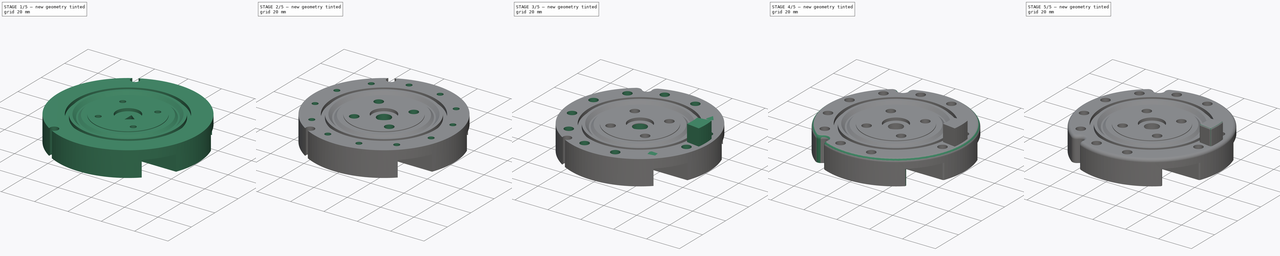
[diagram: build sequence overview — one tinted view per stage of 5, left to right]
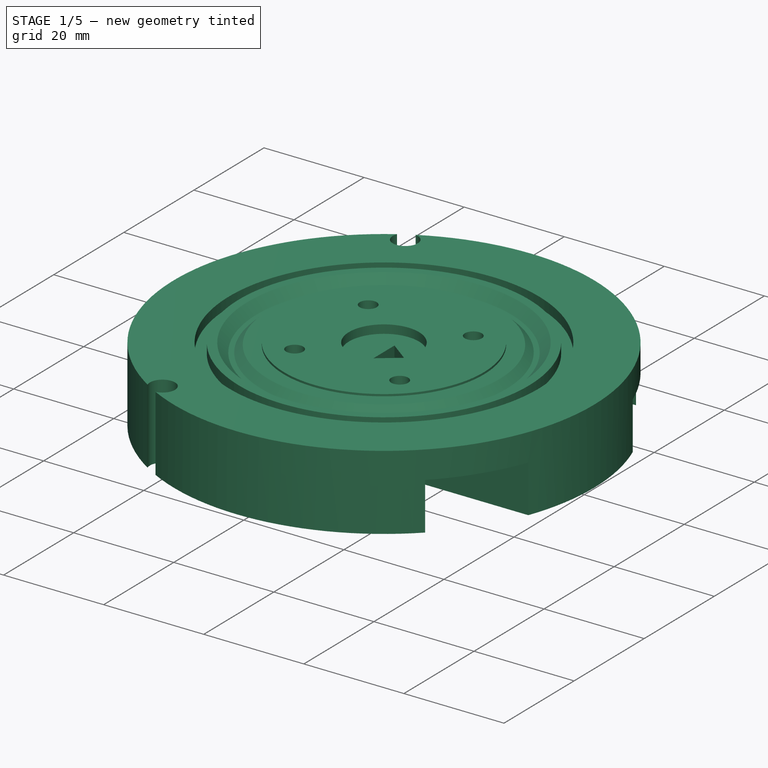
[diagram: stage 1 of 5 — iso view after this stage's code; geometry added in this stage tinted green]
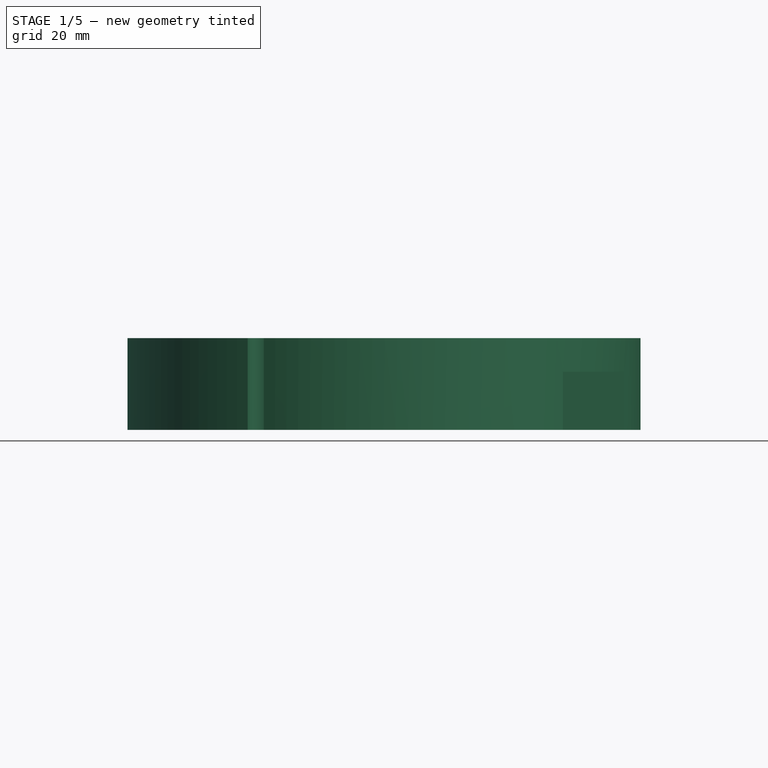
[diagram: stage 1 of 5 — front view after this stage's code; geometry added in this stage tinted green]
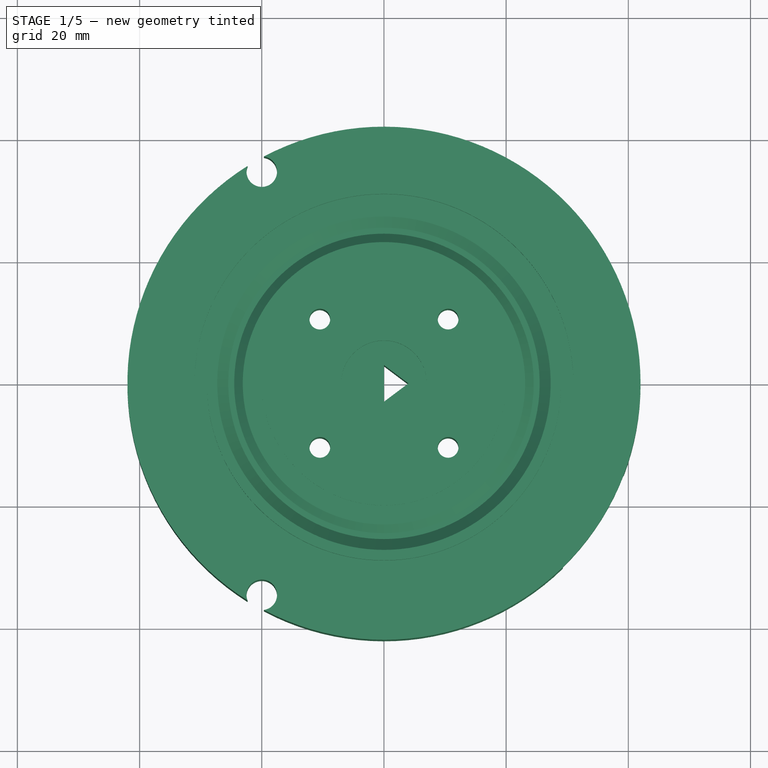
[diagram: stage 1 of 5 — top view after this stage's code; geometry added in this stage tinted green]
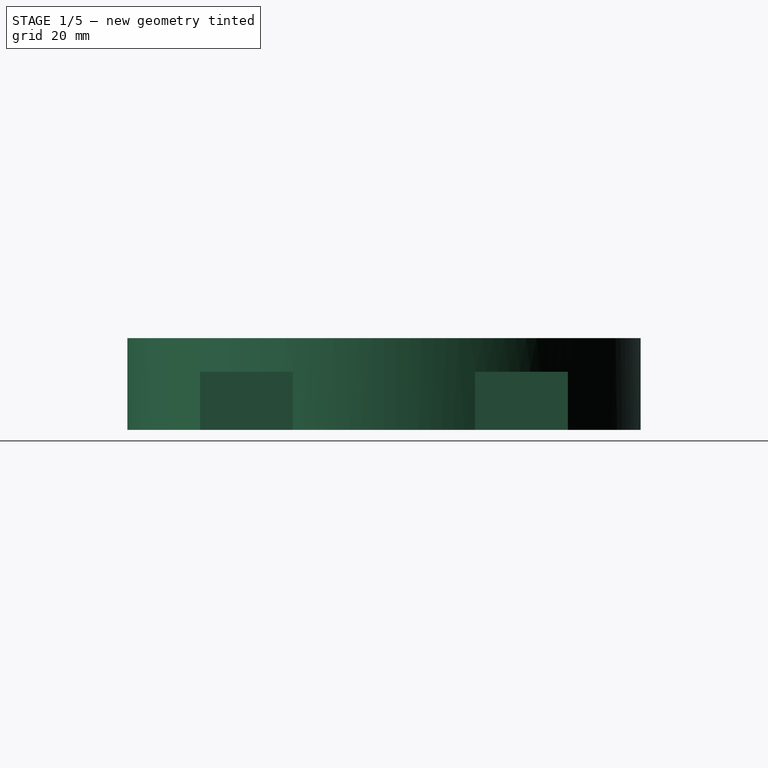
[diagram: stage 1 of 5 — right view after this stage's code; geometry added in this stage tinted green]
FCSTD DOCUMENT  (FreeCAD 0.16R6706 (Git))
Label: UpperKnee4-15mm
License: All rights reserved
LicenseURL: http://en.wikipedia.org/wiki/All_rights_reserved
objects: Sketcher::SketchObject×18, PartDesign::Fillet×16, PartDesign::Pocket×12, PartDesign::Pad×3, PartDesign::Groove×3, PartDesign::PolarPattern×2
note: 72 computed .brp shape members not serialized (recipe doc carries the construction recipe); baked Part::Feature solids carry a one-line shape summary decoded from their .brp

FEATURE [Sketcher::SketchObject] Sketch020  label="BaseShape"
  Placement = pos=(0,0,0) rot=(1,0,0;3.14159rad)
  sketch-geometry (7):
    g0: Circle [constr] CenterX=0 CenterY=0 CenterZ=0 NormalX=0 NormalY=0 NormalZ=1 Radius=25
    g1: Circle [constr] CenterX=0 CenterY=0 CenterZ=0 NormalX=0 NormalY=0 NormalZ=1 Radius=7
    g2: Circle [constr] CenterX=0 CenterY=0 CenterZ=0 NormalX=0 NormalY=0 NormalZ=1 Radius=45
    g3: Circle CenterX=0 CenterY=0 CenterZ=0 NormalX=0 NormalY=0 NormalZ=1 Radius=42
    g4: LineSegment StartX=0 StartY=-3 StartZ=0 EndX=0 EndY=3 EndZ=0
    g5: LineSegment StartX=0 StartY=3 StartZ=0 EndX=4 EndY=0 EndZ=0
    g6: LineSegment StartX=4 StartY=0 StartZ=0 EndX=0 EndY=-3 EndZ=0
  constraints (17):
    c: Coincident(g0,g-1)
    c: Coincident(g1,g-1)
    c: Radius(g1) = 7
    c: Radius(g0) = 25
    c: Coincident(g2,g-1)
    c: Radius(g2) = 45
    c: Coincident(g3,g-1)
    c: Radius(g3) = 42
    c: PointOnObject(g4,g-2)
    c: PointOnObject(g4,g-2)
    c: Coincident(g4,g5)
    c: Coincident(g5,g6)
    c: Coincident(g6,g4)
    c: PointOnObject(g5,g-1)
    c: Equal(g6,g5)
    c: DistanceX(g-1,g5) = 4
    c: DistanceY(g4,g4) = 6
FEATURE [PartDesign::Pad] Pad
  Length = 15
  Length2 = 100
  Placement = pos=(0,0,0) rot=(1,0,0;3.14159rad)
  Sketch = -> Sketch020
  Type = 0
FEATURE [Sketcher::SketchObject] Sketch002  label="Grove1"
  Placement = pos=(0,0,0) rot=(0.57735,-0.57735,0.57735;4.18879rad)
  Support = -> Pad [Face2]
  sketch-geometry (19):
    g0: Circle [constr] CenterX=25 CenterY=-0.4 CenterZ=0 NormalX=0 NormalY=0 NormalZ=1 Radius=1.9
    g1: LineSegment StartX=23.113 StartY=0.4 StartZ=0 EndX=24.513 EndY=1.8 EndZ=0
    g2: LineSegment StartX=24.513 StartY=1.8 StartZ=0 EndX=25.487 EndY=1.8 EndZ=0
    g3: LineSegment StartX=25.487 StartY=1.8 StartZ=0 EndX=27.287 EndY=0 EndZ=0
    g4: LineSegment StartX=27.287 StartY=0 StartZ=0 EndX=27.287 EndY=-5.6 EndZ=0
    g5: LineSegment [constr] StartX=25 StartY=1.8 StartZ=0 EndX=25 EndY=-9.6 EndZ=0
    g6: GeomPoint [constr] X=25 Y=1.5 Z=0
    g7: LineSegment StartX=23.113 StartY=0.4 StartZ=0 EndX=20 EndY=0.4 EndZ=0
    g8: LineSegment StartX=20 StartY=0.4 StartZ=0 EndX=20 EndY=-9.6 EndZ=0
    g9: LineSegment StartX=29 StartY=2 StartZ=0 EndX=31 EndY=2 EndZ=0
    g10: LineSegment StartX=31 StartY=2 StartZ=0 EndX=31 EndY=-9.6 EndZ=0
    g11: LineSegment StartX=29 StartY=-5.6 StartZ=0 EndX=29 EndY=2 EndZ=0
    g12: GeomPoint [constr] X=30 Y=2 Z=0
    g13: LineSegment StartX=27.287 StartY=-5.6 StartZ=0 EndX=29 EndY=-5.6 EndZ=0
    g14: LineSegment StartX=20 StartY=-9.6 StartZ=0 EndX=31 EndY=-9.6 EndZ=0
    g15: LineSegment [constr] StartX=25 StartY=-0.4 StartZ=0 EndX=27.3335 EndY=1.93345 EndZ=0
    g16: LineSegment [constr] StartX=25 StartY=-0.4 StartZ=0 EndX=22.6665 EndY=1.93345 EndZ=0
    g17: GeomPoint [constr] X=26.3435 Y=0.943503 Z=0
    g18: GeomPoint [constr] X=23.6565 Y=0.943503 Z=0
  constraints (57):
    c: DistanceY(g0,g-1) = 0.4
    c: DistanceX(g-1,g0) = 25
    c: Radius(g0) = 1.9
    c: Coincident(g1,g2)
    c: Coincident(g2,g3)
    c: PointOnObject(g3,g-1)
    c: Coincident(g3,g4)
    c: Vertical(g4)
    c: Vertical(g5)
    c: Horizontal(g2)
    c: PointOnObject(g5,g2)
    c: PointOnObject(g0,g5)
    c: Symmetric(g1,g2,g5)
    c: Tangent(g0,g1)
    c: Tangent(g3,g0)
    c: Angle(g1,g3) = 1.5708
    c: PointOnObject(g6,g0)
    c: PointOnObject(g6,g5)
    c: DistanceY(g6,g5) = 0.3
    c: DistanceY(g8,g1) = 10
    c: Horizontal(g7)
    c: Coincident(g8,g7)
    c: Vertical(g8)
    c: DistanceY(g-1,g7) = 0.4
    c: Coincident(g1,g7)
    c: DistanceX(g-1,g7) = 20
    c: DistanceX(g7,g0) = 5
    c: Coincident(g9,g10)
    c: Coincident(g11,g9)
    c: Horizontal(g9)
    c: Vertical(g10)
    c: Vertical(g11)
    c: DistanceY(g-1,g9) = 2
    c: DistanceX(g9,g9) = 2
    c: Symmetric(g9,g9,g12)
    c: DistanceX(g-1,g12) = 30
    c: Coincident(g13,g4)
    c: Coincident(g13,g11)
    c: Horizontal(g13)
    c: Coincident(g14,g8)
    c: Horizontal(g14)
    c: Coincident(g14,g10)
    c: PointOnObject(g5,g14)
    c: DistanceY(g10,g11) = 4
    c: Coincident(g15,g0)
    c: Coincident(g16,g0)
    c: Perpendicular(g1,g16)
    c: Perpendicular(g15,g3)
    c: PointOnObject(g17,g3)
    c: PointOnObject(g17,g15)
    c: Distance(g17,g15) = 1.4
    c: PointOnObject(g18,g1)
    c: PointOnObject(g18,g16)
    c: Distance(g18,g16) = 1.4
    c: DistanceY(g-1,g16) = 1.93345
    c: DistanceX(g-1,g16) = 22.6665
    c: DistanceX(g-1,g15) = 27.3335
FEATURE [PartDesign::Groove] Groove
  Angle = 360
  Axis = (0,0,-1)
  Base = (0,0,0)
  Placement = pos=(0,0,0) rot=(1,0,0;3.14159rad)
  ReferenceAxis = -> Sketch002 [V_Axis]
  Sketch = -> Sketch002
FEATURE [Sketcher::SketchObject] Sketch  label="RodRecess"
  Placement = pos=(0,0,-15) rot=(1,0,0;3.14159rad)
  Support = -> Groove [Face3]
  sketch-geometry (12):
    g0: LineSegment StartX=-20 StartY=30.1 StartZ=0 EndX=40 EndY=30.1 EndZ=0
    g1: LineSegment StartX=40 StartY=30.1 StartZ=0 EndX=40 EndY=14.9 EndZ=0
    g2: LineSegment StartX=40 StartY=14.9 StartZ=0 EndX=-20 EndY=14.9 EndZ=0
    g3: LineSegment StartX=-20 StartY=14.9 StartZ=0 EndX=-20 EndY=30.1 EndZ=0
    g4: LineSegment StartX=-20 StartY=-14.9 StartZ=0 EndX=40 EndY=-14.9 EndZ=0
    g5: LineSegment StartX=40 StartY=-14.9 StartZ=0 EndX=40 EndY=-30.1 EndZ=0
    g6: LineSegment StartX=40 StartY=-30.1 StartZ=0 EndX=-20 EndY=-30.1 EndZ=0
    g7: LineSegment StartX=-20 StartY=-30.1 StartZ=0 EndX=-20 EndY=-14.9 EndZ=0
    g8: LineSegment [constr] StartX=-20 StartY=14.9 StartZ=0 EndX=-20 EndY=-14.9 EndZ=0
    g9: LineSegment [constr] StartX=40 StartY=14.9 StartZ=0 EndX=40 EndY=-14.9 EndZ=0
    g10: GeomPoint [constr] X=-20 Y=22.5 Z=0
    g11: GeomPoint [constr] X=-20 Y=-22.5 Z=0
  constraints (30):
    c: Coincident(g0,g1)
    c: Coincident(g1,g2)
    c: Coincident(g2,g3)
    c: Coincident(g3,g0)
    c: Horizontal(g0)
    c: Horizontal(g2)
    c: Vertical(g1)
    c: Vertical(g3)
    c: Coincident(g4,g5)
    c: Coincident(g5,g6)
    c: Coincident(g6,g7)
    c: Coincident(g7,g4)
    c: Horizontal(g4)
    c: Horizontal(g6)
    c: Vertical(g5)
    c: Vertical(g7)
    c: Coincident(g8,g2)
    c: Coincident(g8,g4)
    c: Vertical(g8)
    c: Coincident(g9,g1)
    c: Coincident(g9,g4)
    c: Vertical(g9)
    c: DistanceY(g2,g0) = 15.2
    c: DistanceX(g0,g0) = 60
    c: Symmetric(g0,g5,g-1)
    c: Symmetric(g1,g4,g-1)
    c: DistanceX(g6,g-1) = 20
    c: Symmetric(g0,g2,g10)
    c: Symmetric(g4,g6,g11)
    c: DistanceY(g11,g10) = 45
FEATURE [PartDesign::Pocket] Pocket
  Length = 9.5
  Placement = pos=(0,0,0) rot=(1,0,0;3.14159rad)
  Sketch = -> Sketch
  Type = 0
FEATURE [Sketcher::SketchObject] Sketch022  label="OuterMountingHoles"
  Support = -> Pocket [Face2]
  sketch-geometry (16):
    g0: Circle [constr] CenterX=30.8221 CenterY=15.5 CenterZ=0 NormalX=0 NormalY=0 NormalZ=1 Radius=1.7
    g1: Circle [constr] CenterX=0 CenterY=0 CenterZ=0 NormalX=0 NormalY=0 NormalZ=1 Radius=38.6
    g2: Circle [constr] CenterX=0 CenterY=0 CenterZ=0 NormalX=0 NormalY=0 NormalZ=1 Radius=30
    g3: Circle [constr] CenterX=0 CenterY=0 CenterZ=0 NormalX=0 NormalY=0 NormalZ=1 Radius=34.5
    g4: Circle [constr] CenterX=0 CenterY=34.5 CenterZ=0 NormalX=0 NormalY=0 NormalZ=1 Radius=1.7
    g5: Circle CenterX=-17.2814 CenterY=29.8597 CenterZ=0 NormalX=0 NormalY=0 NormalZ=1 Radius=0
    g6: Circle [constr] CenterX=30.8221 CenterY=-15.5 CenterZ=0 NormalX=0 NormalY=0 NormalZ=1 Radius=1.7
    g7: Circle [constr] CenterX=0 CenterY=-34.5 CenterZ=0 NormalX=0 NormalY=0 NormalZ=1 Radius=1.7
    g8: Circle [constr] CenterX=-28.7967 CenterY=-19 CenterZ=0 NormalX=0 NormalY=0 NormalZ=1 Radius=1.7
    g9: Circle [constr] CenterX=-28.7967 CenterY=19 CenterZ=0 NormalX=0 NormalY=0 NormalZ=1 Radius=1.7
    g10: Circle [constr] CenterX=-34.5 CenterY=0 CenterZ=0 NormalX=0 NormalY=0 NormalZ=1 Radius=1.7
    g11: LineSegment [constr] StartX=0 StartY=34.5 StartZ=0 EndX=0 EndY=25 EndZ=0
    g12: LineSegment [constr] StartX=30.8221 StartY=15.5 StartZ=0 EndX=30.8221 EndY=25 EndZ=0
    g13: LineSegment [constr] StartX=0 StartY=25 StartZ=0 EndX=30.8221 EndY=25 EndZ=0
    g14: Circle CenterX=-20 CenterY=34.641 CenterZ=0 NormalX=0 NormalY=0 NormalZ=1 Radius=2.5
    g15: Circle CenterX=-20 CenterY=-34.641 CenterZ=0 NormalX=0 NormalY=0 NormalZ=1 Radius=2.5
  constraints (38):
    c: Radius(g0) = 1.7
    c: Radius(g1) = 38.6
    c: Radius(g2) = 30
    c: Radius(g3) = 34.5
    c: Equal(g4,g0)
    c: PointOnObject(g9,g3)
    c: Symmetric(g8,g9,g-1)
    c: Symmetric(g4,g7,g-1)
    c: Symmetric(g0,g6,g-1)
    c: Equal(g6,g7)
    c: Equal(g7,g8)
    c: Equal(g8,g9)
    c: Equal(g9,g4)
    c: Coincident(g3,g-1)
    c: Coincident(g2,g-1)
    c: Coincident(g1,g-1)
    c: PointOnObject(g4,g3)
    c: PointOnObject(g0,g3)
    c: DistanceY(g8,g9) = 38
    c: PointOnObject(g10,g3)
    c: Equal(g10,g9)
    c: Coincident(g11,g4)
    c: Vertical(g11)
    c: Vertical(g12)
    c: Equal(g11,g12)
    c: DistanceY(g6,g0) = 31
    c: Coincident(g12,g0)
    c: PointOnObject(g10,g-1)
    c: PointOnObject(g4,g-2)
    c: Coincident(g13,g12)
    c: Horizontal(g13)
    c: Coincident(g13,g11)
    c: DistanceY(g-1,g11) = 25
    c: Radius(g15) = 2.5
    c: Equal(g15,g14)
    c: Symmetric(g15,g14,g-1)
    c: Distance(g-1,g14) = 40
    c: DistanceX(g14,g4) = 20
FEATURE [PartDesign::Pocket] Pocket002
  Length = 5
  Placement = pos=(0,0,0) rot=(1,0,0;3.14159rad)
  Sketch = -> Sketch022
  Type = 1
FEATURE [Sketcher::SketchObject] Sketch023  label="BearingMount"
  Placement = pos=(0,0,-15) rot=(1,0,0;3.14159rad)
  Support = -> Pocket002 [Face3]
  sketch-geometry (2):
    g0: Circle CenterX=0 CenterY=0 CenterZ=0 NormalX=0 NormalY=0 NormalZ=1 Radius=8.6
    g1: Circle CenterX=0 CenterY=0 CenterZ=0 NormalX=0 NormalY=0 NormalZ=1 Radius=6.5
  constraints (4):
    c: Coincident(g0,g-1)
    c: Radius(g0) = 8.6
    c: Radius(g1) = 6.5
    c: Coincident(g1,g-1)
FEATURE [PartDesign::Pocket] Pocket003
  Length = 13
  Placement = pos=(0,0,0) rot=(1,0,0;3.14159rad)
  Sketch = -> Sketch023
  Type = 0
FEATURE [Sketcher::SketchObject] Sketch024  label="CenterHole"
  Support = -> Pocket003 [Face30]
  sketch-geometry (1):
    g0: Circle CenterX=0 CenterY=0 CenterZ=0 NormalX=0 NormalY=0 NormalZ=1 Radius=7
  constraints (2):
    c: Radius(g0) = 7
    c: Coincident(g0,g-1)
FEATURE [PartDesign::Pocket] Pocket004
  Length = 1.7
  Placement = pos=(0,0,0) rot=(1,0,0;3.14159rad)
  Sketch = -> Sketch024
  Type = 0
FEATURE [Sketcher::SketchObject] Sketch025  label="Centre screws"
  Placement = pos=(0,0,-15) rot=(1,0,0;3.14159rad)
  Support = -> Pocket004 [Face3]
  sketch-geometry (8):
    g0: LineSegment [constr] StartX=-10.5 StartY=10.5 StartZ=0 EndX=10.5 EndY=10.5 EndZ=0
    g1: LineSegment [constr] StartX=10.5 StartY=10.5 StartZ=0 EndX=10.5 EndY=-10.5 EndZ=0
    g2: LineSegment [constr] StartX=10.5 StartY=-10.5 StartZ=0 EndX=-10.5 EndY=-10.5 EndZ=0
    g3: LineSegment [constr] StartX=-10.5 StartY=-10.5 StartZ=0 EndX=-10.5 EndY=10.5 EndZ=0
    g4: Circle CenterX=-10.5 CenterY=10.5 CenterZ=0 NormalX=0 NormalY=0 NormalZ=1 Radius=1.7
    g5: Circle CenterX=10.5 CenterY=10.5 CenterZ=0 NormalX=0 NormalY=0 NormalZ=1 Radius=1.7
    g6: Circle CenterX=10.5 CenterY=-10.5 CenterZ=0 NormalX=0 NormalY=0 NormalZ=1 Radius=1.7
    g7: Circle CenterX=-10.5 CenterY=-10.5 CenterZ=0 NormalX=0 NormalY=0 NormalZ=1 Radius=1.7
  constraints (19):
    c: Coincident(g0,g1)
    c: Coincident(g1,g2)
    c: Coincident(g2,g3)
    c: Coincident(g3,g0)
    c: Horizontal(g0)
    c: Horizontal(g2)
    c: Vertical(g1)
    c: Vertical(g3)
    c: Symmetric(g0,g2,g-1)
    c: DistanceY(g1,g0) = 21
    c: DistanceX(g0,g0) = 21
    c: Coincident(g4,g0)
    c: Coincident(g6,g1)
    c: Radius(g6) = 1.7
    c: Equal(g6,g7)
    c: Equal(g6,g4)
    c: Equal(g6,g5)
    c: Coincident(g5,g0)
    c: Coincident(g7,g2)
FEATURE [PartDesign::Pocket] Pocket005
  Length = 5
  Placement = pos=(0,0,0) rot=(1,0,0;3.14159rad)
  Sketch = -> Sketch025
  Type = 1
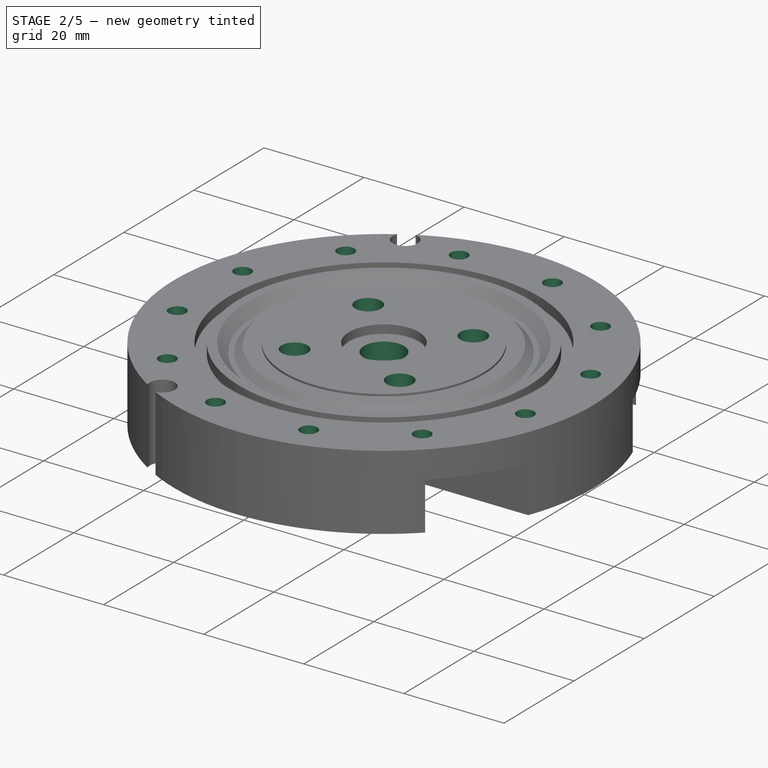
[diagram: stage 2 of 5 — iso view after this stage's code; geometry added in this stage tinted green]
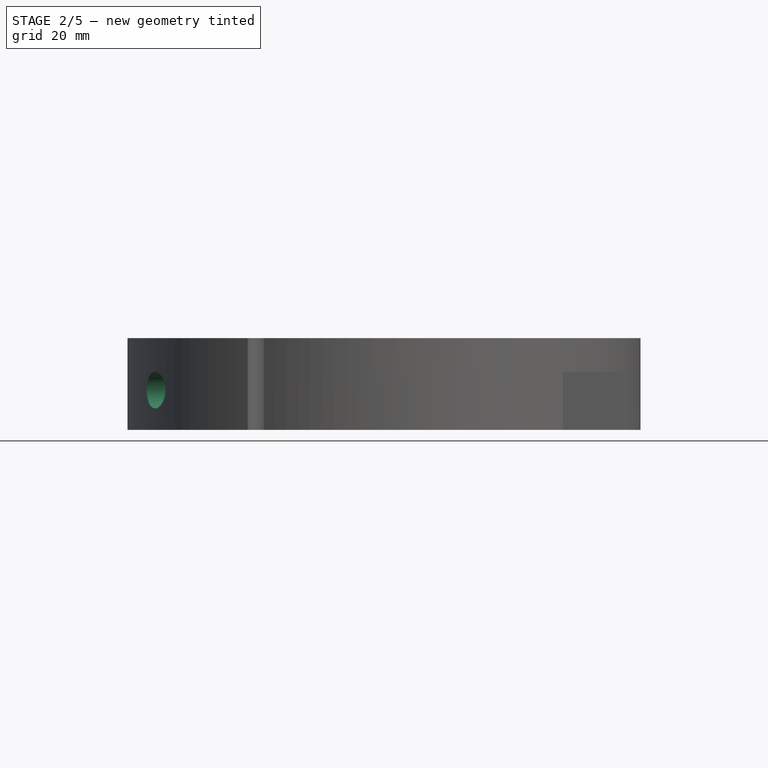
[diagram: stage 2 of 5 — front view after this stage's code; geometry added in this stage tinted green]
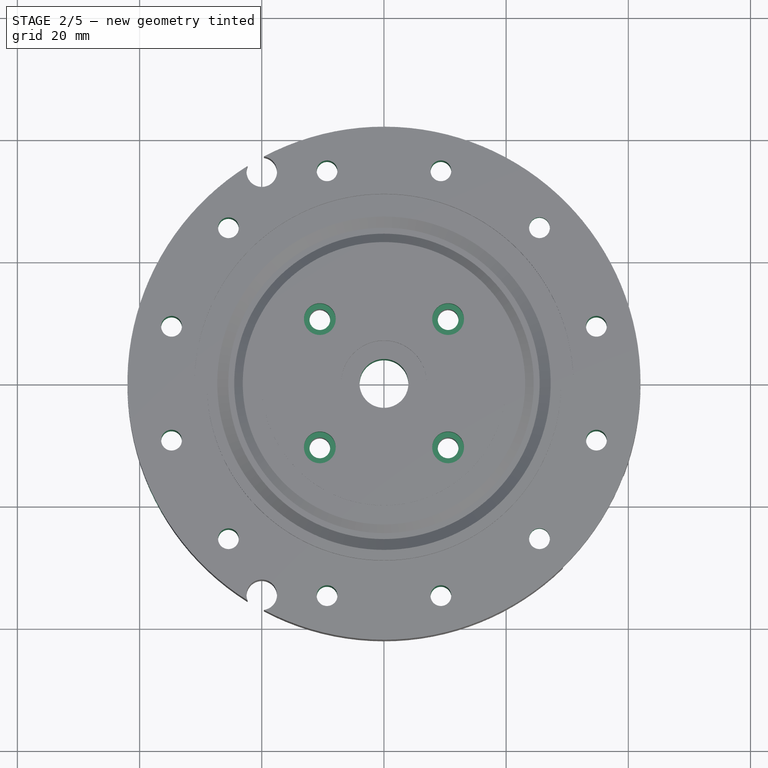
[diagram: stage 2 of 5 — top view after this stage's code; geometry added in this stage tinted green]
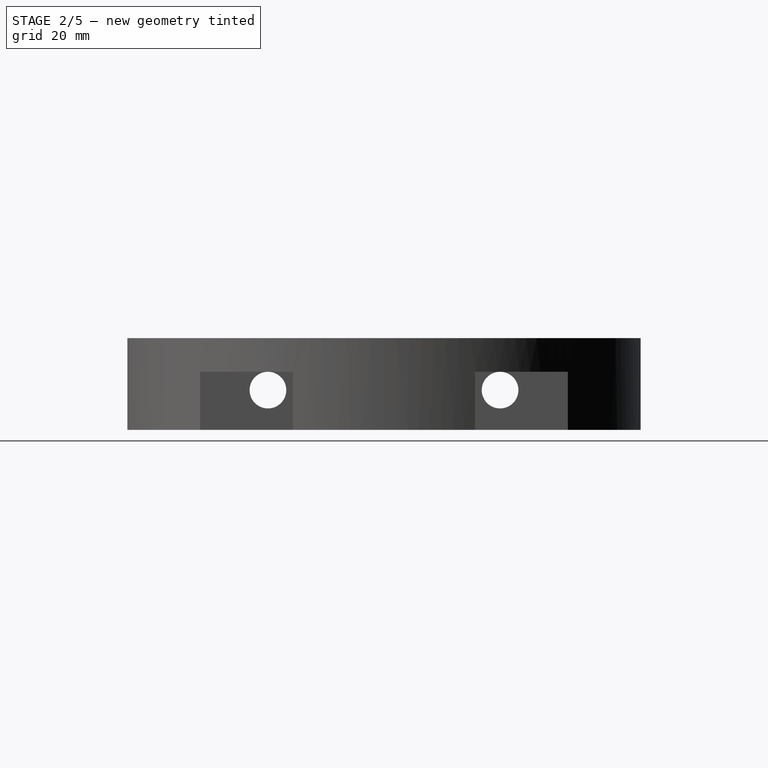
[diagram: stage 2 of 5 — right view after this stage's code; geometry added in this stage tinted green]
FEATURE [Sketcher::SketchObject] Sketch027  label="InnerReinforce"
  Placement = pos=(0,0,0) rot=(0.57735,-0.57735,0.57735;4.18879rad)
  Support = -> Pocket005 [Face38]
  sketch-geometry (1):
    g0: Circle CenterX=22.67 CenterY=1.93 CenterZ=0 NormalX=0 NormalY=0 NormalZ=1 Radius=0.15
  constraints (3):
    c: Radius(g0) = 0.15
    c: DistanceX(g-1,g0) = 22.67
    c: DistanceY(g-1,g0) = 1.93
FEATURE [PartDesign::Groove] Groove001
  Angle = 360
  Axis = (0,0,-1)
  Base = (0,0,0)
  Placement = pos=(0,0,0) rot=(1,0,0;3.14159rad)
  ReferenceAxis = -> Sketch027 [V_Axis]
  Sketch = -> Sketch027
FEATURE [Sketcher::SketchObject] Sketch028  label="OuterReinforce"
  Placement = pos=(0,0,0) rot=(0.57735,-0.57735,0.57735;4.18879rad)
  Support = -> Groove001 [Face38]
  sketch-geometry (1):
    g0: Circle CenterX=27.33 CenterY=1.93 CenterZ=0 NormalX=0 NormalY=0 NormalZ=1 Radius=0.15
  constraints (3):
    c: Radius(g0) = 0.15
    c: DistanceX(g-1,g0) = 27.33
    c: DistanceY(g-1,g0) = 1.93
FEATURE [PartDesign::Groove] Groove002
  Angle = 360
  Axis = (0,0,-1)
  Base = (0,0,0)
  Placement = pos=(0,0,0) rot=(1,0,0;3.14159rad)
  ReferenceAxis = -> Sketch028 [V_Axis]
  Sketch = -> Sketch028
FEATURE [Sketcher::SketchObject] Sketch026  label="VeryCenterHole"
  Placement = pos=(0,0,-15) rot=(1,0,0;3.14159rad)
  Support = -> Groove002 [Face33]
  sketch-geometry (1):
    g0: Circle CenterX=0 CenterY=0 CenterZ=0 NormalX=0 NormalY=0 NormalZ=1 Radius=4
  constraints (2):
    c: Coincident(g0,g-1)
    c: Radius(g0) = 4
FEATURE [PartDesign::Pocket] Pocket006  label="VeryCenterHole001"
  Length = 5
  Placement = pos=(0,0,0) rot=(1,0,0;3.14159rad)
  Sketch = -> Sketch026
  Type = 1
FEATURE [Sketcher::SketchObject] Sketch029  label="OuterMountingHoles001"
  Support = -> Pocket006 [Face8]
  sketch-geometry (50):
    g0: Circle [constr] CenterX=30.8221 CenterY=15.5 CenterZ=0 NormalX=0 NormalY=0 NormalZ=1 Radius=2.6
    g1: Circle [constr] CenterX=0 CenterY=0 CenterZ=0 NormalX=0 NormalY=0 NormalZ=1 Radius=38.6
    g2: Circle [constr] CenterX=0 CenterY=0 CenterZ=0 NormalX=0 NormalY=0 NormalZ=1 Radius=30
    g3: Circle [constr] CenterX=0 CenterY=0 CenterZ=0 NormalX=0 NormalY=0 NormalZ=1 Radius=34.5
    g4: Circle [constr] CenterX=0 CenterY=34.5 CenterZ=0 NormalX=0 NormalY=0 NormalZ=1 Radius=2.6
    g5: Circle CenterX=-17.2814 CenterY=29.8597 CenterZ=0 NormalX=0 NormalY=0 NormalZ=1 Radius=0
    g6: Circle [constr] CenterX=30.8221 CenterY=-15.5 CenterZ=0 NormalX=0 NormalY=0 NormalZ=1 Radius=2.6
    g7: Circle [constr] CenterX=0 CenterY=-34.5 CenterZ=0 NormalX=0 NormalY=0 NormalZ=1 Radius=2.6
    g8: Circle [constr] CenterX=-28.7967 CenterY=-19 CenterZ=0 NormalX=0 NormalY=0 NormalZ=1 Radius=2.6
    g9: Circle [constr] CenterX=-28.7967 CenterY=19 CenterZ=0 NormalX=0 NormalY=0 NormalZ=1 Radius=2.6
    g10: Circle [constr] CenterX=-34.5 CenterY=0 CenterZ=0 NormalX=0 NormalY=0 NormalZ=1 Radius=2.6
    g11: LineSegment [constr] StartX=0 StartY=34.5 StartZ=0 EndX=0 EndY=25 EndZ=0
    g12: LineSegment [constr] StartX=30.8221 StartY=15.5 StartZ=0 EndX=30.8221 EndY=25 EndZ=0
    g13: LineSegment [constr] StartX=-10.5 StartY=-10.5 StartZ=0 EndX=10.5 EndY=-10.5 EndZ=0
    g14: LineSegment [constr] StartX=10.5 StartY=-10.5 StartZ=0 EndX=10.5 EndY=10.5 EndZ=0
    g15: LineSegment [constr] StartX=10.5 StartY=10.5 StartZ=0 EndX=-10.5 EndY=10.5 EndZ=0
    g16: LineSegment [constr] StartX=-10.5 StartY=10.5 StartZ=0 EndX=-10.5 EndY=-10.5 EndZ=0
    g17: Circle CenterX=-10.5 CenterY=10.5 CenterZ=0 NormalX=0 NormalY=0 NormalZ=1 Radius=2.6
    g18: Circle CenterX=10.5 CenterY=10.5 CenterZ=0 NormalX=0 NormalY=0 NormalZ=1 Radius=2.6
    g19: Circle CenterX=-10.5 CenterY=-10.5 CenterZ=0 NormalX=0 NormalY=0 NormalZ=1 Radius=2.6
    g20: Circle CenterX=10.5 CenterY=-10.5 CenterZ=0 NormalX=0 NormalY=0 NormalZ=1 Radius=2.6
    g21: LineSegment [constr] StartX=0 StartY=25 StartZ=0 EndX=30.8221 EndY=25 EndZ=0
    g22: LineSegment [constr] StartX=-7.26684 StartY=10.5 StartZ=0 EndX=-8.88342 EndY=13.3 EndZ=0
    g23: LineSegment [constr] StartX=-8.88342 StartY=13.3 StartZ=0 EndX=-12.1166 EndY=13.3 EndZ=0
    g24: LineSegment [constr] StartX=-12.1166 StartY=13.3 StartZ=0 EndX=-13.7332 EndY=10.5 EndZ=0
    g25: LineSegment [constr] StartX=-13.7332 StartY=10.5 StartZ=0 EndX=-12.1166 EndY=7.7 EndZ=0
    g26: LineSegment [constr] StartX=-12.1166 StartY=7.7 StartZ=0 EndX=-8.88342 EndY=7.7 EndZ=0
    g27: LineSegment [constr] StartX=-8.88342 StartY=7.7 StartZ=0 EndX=-7.26684 EndY=10.5 EndZ=0
    g28: Circle [constr] CenterX=-10.5 CenterY=10.5 CenterZ=0 NormalX=0 NormalY=0 NormalZ=1 Radius=3.23316
    g29: LineSegment [constr] StartX=8.88342 StartY=13.3 StartZ=0 EndX=7.26684 EndY=10.5 EndZ=0
    g30: LineSegment [constr] StartX=7.26684 StartY=10.5 StartZ=0 EndX=8.88342 EndY=7.7 EndZ=0
    g31: LineSegment [constr] StartX=8.88342 StartY=7.7 StartZ=0 EndX=12.1166 EndY=7.7 EndZ=0
    g32: LineSegment [constr] StartX=12.1166 StartY=7.7 StartZ=0 EndX=13.7332 EndY=10.5 EndZ=0
    g33: LineSegment [constr] StartX=13.7332 StartY=10.5 StartZ=0 EndX=12.1166 EndY=13.3 EndZ=0
    g34: LineSegment [constr] StartX=12.1166 StartY=13.3 StartZ=0 EndX=8.88342 EndY=13.3 EndZ=0
    g35: Circle [constr] CenterX=10.5 CenterY=10.5 CenterZ=0 NormalX=0 NormalY=0 NormalZ=1 Radius=3.23316
    g36: LineSegment [constr] StartX=-12.1166 StartY=-7.7 StartZ=0 EndX=-13.7332 EndY=-10.5 EndZ=0
    g37: LineSegment [constr] StartX=-13.7332 StartY=-10.5 StartZ=0 EndX=-12.1166 EndY=-13.3 EndZ=0
    g38: LineSegment [constr] StartX=-12.1166 StartY=-13.3 StartZ=0 EndX=-8.88342 EndY=-13.3 EndZ=0
    g39: LineSegment [constr] StartX=-8.88342 StartY=-13.3 StartZ=0 EndX=-7.26684 EndY=-10.5 EndZ=0
    g40: LineSegment [constr] StartX=-7.26684 StartY=-10.5 StartZ=0 EndX=-8.88342 EndY=-7.7 EndZ=0
    g41: LineSegment [constr] StartX=-8.88342 StartY=-7.7 StartZ=0 EndX=-12.1166 EndY=-7.7 EndZ=0
    g42: Circle [constr] CenterX=-10.5 CenterY=-10.5 CenterZ=0 NormalX=0 NormalY=0 NormalZ=1 Radius=3.23316
    g43: LineSegment [constr] StartX=8.88342 StartY=-7.7 StartZ=0 EndX=7.26684 EndY=-10.5 EndZ=0
    g44: LineSegment [constr] StartX=7.26684 StartY=-10.5 StartZ=0 EndX=8.88342 EndY=-13.3 EndZ=0
    g45: LineSegment [constr] StartX=8.88342 StartY=-13.3 StartZ=0 EndX=12.1166 EndY=-13.3 EndZ=0
    g46: LineSegment [constr] StartX=12.1166 StartY=-13.3 StartZ=0 EndX=13.7332 EndY=-10.5 EndZ=0
    g47: LineSegment [constr] StartX=13.7332 StartY=-10.5 StartZ=0 EndX=12.1166 EndY=-7.7 EndZ=0
    g48: LineSegment [constr] StartX=12.1166 StartY=-7.7 StartZ=0 EndX=8.88342 EndY=-7.7 EndZ=0
    g49: Circle [constr] CenterX=10.5 CenterY=-10.5 CenterZ=0 NormalX=0 NormalY=0 NormalZ=1 Radius=3.23316
  constraints (116):
    c: Radius(g0) = 2.6
    c: Radius(g1) = 38.6
    c: Radius(g2) = 30
    c: Radius(g3) = 34.5
    c: Equal(g4,g0)
    c: PointOnObject(g9,g3)
    c: Symmetric(g8,g9,g-1)
    c: Symmetric(g4,g7,g-1)
    c: Symmetric(g0,g6,g-1)
    c: Equal(g6,g7)
    c: Equal(g7,g8)
    c: Equal(g8,g9)
    c: Equal(g9,g4)
    c: Coincident(g3,g-1)
    c: Coincident(g2,g-1)
    c: Coincident(g1,g-1)
    c: PointOnObject(g4,g3)
    c: PointOnObject(g0,g3)
    c: DistanceY(g8,g9) = 38
    c: PointOnObject(g10,g3)
    c: Equal(g10,g9)
    c: Coincident(g11,g4)
    c: Vertical(g11)
    c: Vertical(g12)
    c: Equal(g11,g12)
    c: DistanceY(g6,g0) = 31
    c: Coincident(g12,g0)
    c: Coincident(g13,g14)
    c: Coincident(g14,g15)
    c: Coincident(g15,g16)
    c: Coincident(g16,g13)
    c: Horizontal(g13)
    c: Horizontal(g15)
    c: Vertical(g14)
    c: Vertical(g16)
    c: Symmetric(g14,g13,g-1)
    c: Equal(g15,g14)
    c: DistanceX(g15,g15) = 21
    c: Coincident(g17,g15)
    c: Coincident(g18,g14)
    c: Coincident(g19,g13)
    c: Coincident(g20,g13)
    c: Equal(g20,g19)
    c: Equal(g19,g17)
    c: Equal(g17,g18)
    c: Equal(g18,g0)
    c: PointOnObject(g4,g-2)
    c: PointOnObject(g10,g-1)
    c: Coincident(g21,g11)
    c: Coincident(g21,g12)
    c: Horizontal(g21)
    c: DistanceY(g-1,g11) = 25
    c: Coincident(g22,g23)
    c: Coincident(g23,g24)
    c: Coincident(g24,g25)
    c: Coincident(g25,g26)
    c: Coincident(g26,g27)
    c: Coincident(g27,g22)
    c: Equal(g22, g23-g27) x5
    c: PointOnObject(g22,g28)
    c: PointOnObject(g23,g28)
    c: PointOnObject(g24,g28)
    c: PointOnObject(g25,g28)
    c: PointOnObject(g26,g28)
    c: PointOnObject(g27,g28)
    c: Coincident(g28,g15)
    c: Coincident(g29,g30)
    c: Coincident(g30,g31)
    c: Coincident(g31,g32)
    c: Coincident(g32,g33)
    c: Coincident(g33,g34)
    c: Coincident(g34,g29)
    c: Equal(g29, g30-g34) x5
    c: PointOnObject(g29,g35)
    c: PointOnObject(g30,g35)
    c: PointOnObject(g31,g35)
    c: PointOnObject(g32,g35)
    c: PointOnObject(g33,g35)
    c: PointOnObject(g34,g35)
    c: Coincident(g35,g14)
    c: Coincident(g36,g37)
    c: Coincident(g37,g38)
    c: Coincident(g38,g39)
    c: Coincident(g39,g40)
    c: Coincident(g40,g41)
    c: Coincident(g41,g36)
    c: Equal(g36, g37-g41) x5
    c: PointOnObject(g36,g42)
    c: PointOnObject(g37,g42)
    c: PointOnObject(g38,g42)
    c: PointOnObject(g39,g42)
    c: PointOnObject(g40,g42)
    c: PointOnObject(g41,g42)
    c: Coincident(g42,g13)
    c: Coincident(g43,g44)
    c: Coincident(g44,g45)
    c: Coincident(g45,g46)
    c: Coincident(g46,g47)
    c: Coincident(g47,g48)
    c: Coincident(g48,g43)
    c: Equal(g43, g44-g48) x5
    c: PointOnObject(g43,g49)
    c: PointOnObject(g44,g49)
    c: PointOnObject(g45,g49)
    c: PointOnObject(g46,g49)
    c: PointOnObject(g47,g49)
    c: PointOnObject(g48,g49)
    c: Coincident(g49,g13)
    c: Horizontal(g38)
    c: Horizontal(g45)
    c: Horizontal(g26)
    c: Horizontal(g31)
    c: Equal(g49,g42)
    c: Equal(g42,g28)
    c: Equal(g28,g35)
    c: Distance(g25,g23) = 5.6
FEATURE [PartDesign::Pocket] Pocket007
  Length = 5
  Placement = pos=(0,0,0) rot=(1,0,0;3.14159rad)
  Sketch = -> Sketch029
  Type = 0
FEATURE [Sketcher::SketchObject] Sketch030  label="Cable Holes"
  Placement = pos=(-20,0,0) rot=(0.57735,-0.57735,0.57735;4.18879rad)
  Support = -> Pocket007 [Face14]
  sketch-geometry (2):
    g0: Circle CenterX=-19 CenterY=8.5 CenterZ=0 NormalX=0 NormalY=0 NormalZ=1 Radius=3
    g1: Circle CenterX=19 CenterY=8.5 CenterZ=0 NormalX=0 NormalY=0 NormalZ=1 Radius=3
  constraints (5):
    c: Symmetric(g0,g1,g-2)
    c: DistanceX(g0,g1) = 38
    c: Radius(g0) = 3
    c: Equal(g0,g1)
    c: DistanceY(g-1,g0) = 8.5
FEATURE [PartDesign::Pocket] Pocket008
  Length = 5
  Placement = pos=(0,0,0) rot=(1,0,0;3.14159rad)
  Sketch = -> Sketch030
  Type = 1
FEATURE [Sketcher::SketchObject] Sketch031
  Support = -> Pocket008 [Face8]
  sketch-geometry (3):
    g0: Circle [constr] CenterX=0 CenterY=0 CenterZ=0 NormalX=0 NormalY=0 NormalZ=1 Radius=36
    g1: Circle CenterX=9.31749 CenterY=34.7733 CenterZ=0 NormalX=0 NormalY=0 NormalZ=1 Radius=1.7
    g2: LineSegment [constr] StartX=9.31749 StartY=34.7733 StartZ=0 EndX=0 EndY=0 EndZ=0
  constraints (7):
    c: Coincident(g0,g-1)
    c: Radius(g0) = 36
    c: PointOnObject(g1,g0)
    c: Coincident(g2,g1)
    c: Coincident(g2,g-1)
    c: Radius(g1) = 1.7
    c: Angle(g2,g-2) = 0.261799
FEATURE [PartDesign::Pocket] Pocket009  label="OuterHole"
  Length = 5
  Placement = pos=(0,0,0) rot=(1,0,0;3.14159rad)
  Sketch = -> Sketch031
  Type = 1
FEATURE [PartDesign::PolarPattern] PolarPattern  label="Outer Hole x12"
  Angle = 360
  Axis = -> Sketch031 [N_Axis]
  Occurrences = 12
  Originals = -> [Pocket009]
  Placement = pos=(0,0,0) rot=(1,0,0;3.14159rad)
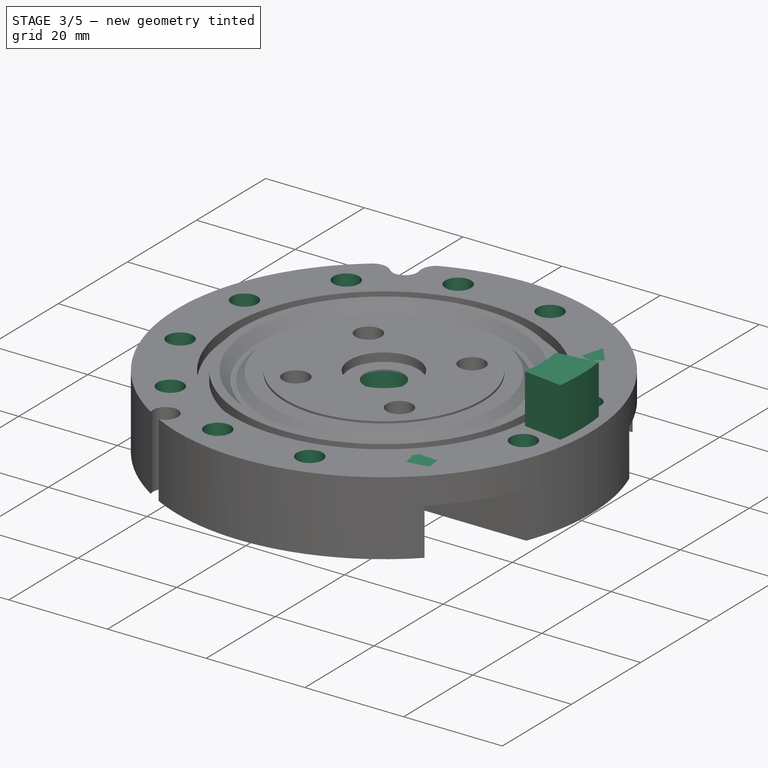
[diagram: stage 3 of 5 — iso view after this stage's code; geometry added in this stage tinted green]
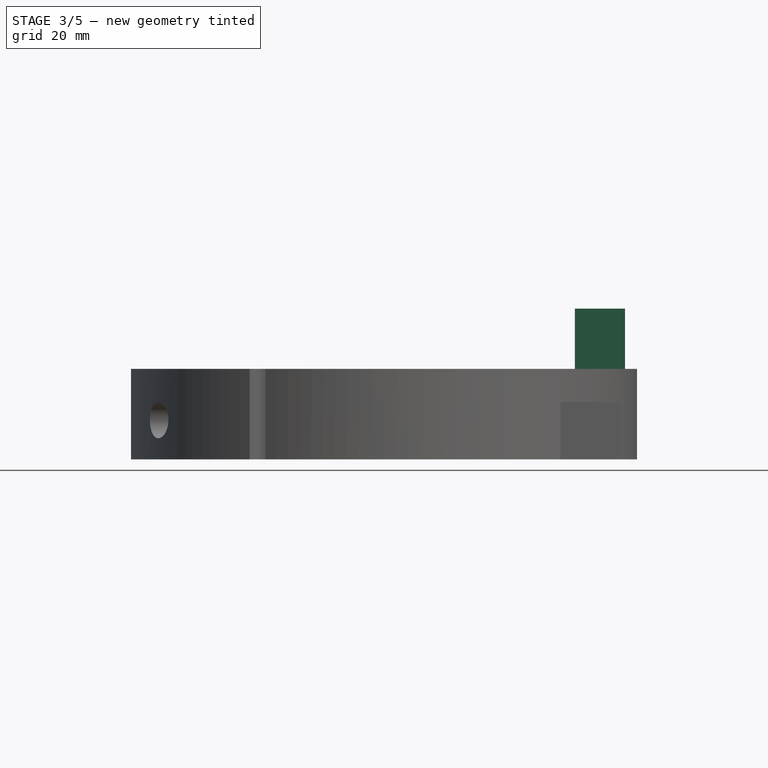
[diagram: stage 3 of 5 — front view after this stage's code; geometry added in this stage tinted green]
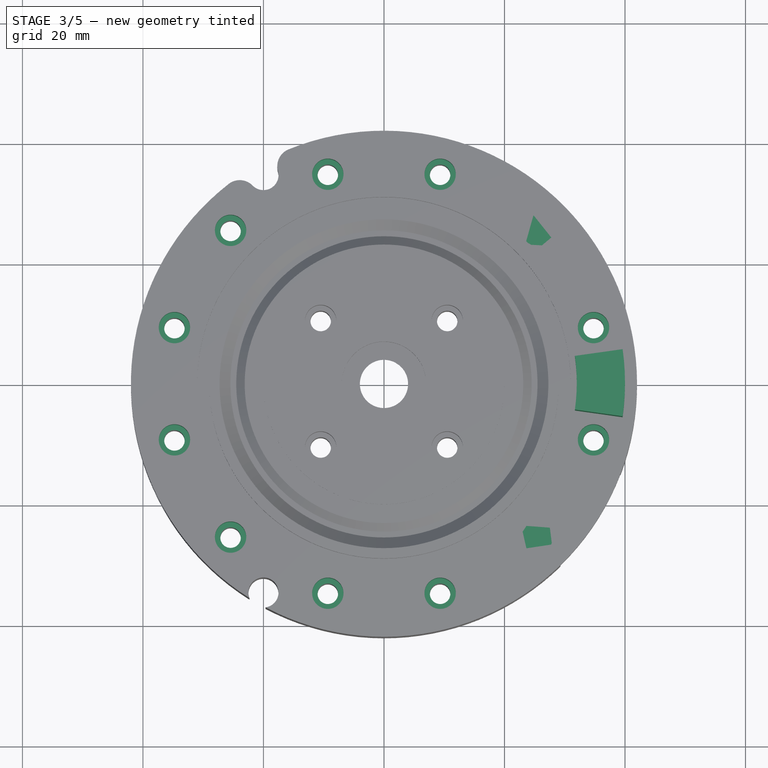
[diagram: stage 3 of 5 — top view after this stage's code; geometry added in this stage tinted green]
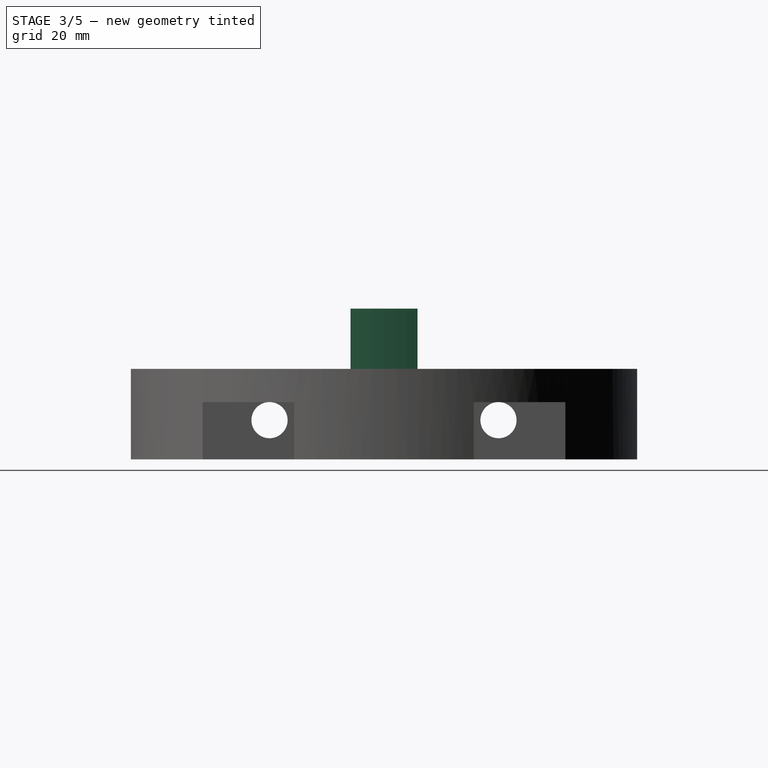
[diagram: stage 3 of 5 — right view after this stage's code; geometry added in this stage tinted green]
FEATURE [Sketcher::SketchObject] Sketch032
  Support = -> PolarPattern [Face8]
  sketch-geometry (10):
    g0: Circle [constr] CenterX=0 CenterY=0 CenterZ=0 NormalX=0 NormalY=0 NormalZ=1 Radius=36
    g1: Circle CenterX=9.31749 CenterY=34.7733 CenterZ=0 NormalX=0 NormalY=0 NormalZ=1 Radius=2.6
    g2: LineSegment [constr] StartX=0 StartY=0 StartZ=0 EndX=9.31749 EndY=34.7733 EndZ=0
    g3: LineSegment [constr] StartX=10.1543 StartY=31.6503 StartZ=0 EndX=12.4405 EndY=33.9365 EndZ=0
    g4: LineSegment [constr] StartX=12.4405 StartY=33.9365 StartZ=0 EndX=11.6037 EndY=37.0595 EndZ=0
    g5: LineSegment [constr] StartX=11.6037 StartY=37.0595 StartZ=0 EndX=8.48068 EndY=37.8963 EndZ=0
    g6: LineSegment [constr] StartX=8.48068 StartY=37.8963 StartZ=0 EndX=6.19449 EndY=35.6101 EndZ=0
    g7: LineSegment [constr] StartX=6.19449 StartY=35.6101 StartZ=0 EndX=7.0313 EndY=32.4871 EndZ=0
    g8: LineSegment [constr] StartX=7.0313 StartY=32.4871 StartZ=0 EndX=10.1543 EndY=31.6503 EndZ=0
    g9: Circle [constr] CenterX=9.31749 CenterY=34.7733 CenterZ=0 NormalX=0 NormalY=0 NormalZ=1 Radius=3.23316
  constraints (23):
    c: Coincident(g0,g-1)
    c: Radius(g0) = 36
    c: PointOnObject(g1,g0)
    c: Radius(g1) = 2.6
    c: Coincident(g2,g-1)
    c: Coincident(g2,g1)
    c: Angle(g2,g-2) = 0.261799
    c: Coincident(g3,g4)
    c: Coincident(g4,g5)
    c: Coincident(g5,g6)
    c: Coincident(g6,g7)
    c: Coincident(g7,g8)
    c: Coincident(g8,g3)
    c: Equal(g3, g4-g8) x5
    c: PointOnObject(g3,g9)
    c: PointOnObject(g4,g9)
    c: PointOnObject(g5,g9)
    c: PointOnObject(g6,g9)
    c: PointOnObject(g7,g9)
    c: PointOnObject(g8,g9)
    c: Coincident(g9,g1)
    c: Perpendicular(g2,g8)
    c: Distance(g3,g4) = 5.6
FEATURE [PartDesign::Pocket] Pocket010  label="OuterHole for BrassInsert"
  Length = 5
  Placement = pos=(0,0,0) rot=(1,0,0;3.14159rad)
  Sketch = -> Sketch032
  Type = 0
FEATURE [PartDesign::PolarPattern] PolarPattern001
  Angle = 360
  Axis = -> Sketch032 [N_Axis]
  Occurrences = 12
  Originals = -> [Pocket010]
  Placement = pos=(0,0,0) rot=(1,0,0;3.14159rad)
FEATURE [Sketcher::SketchObject] Sketch033
  Placement = pos=(0,0,-5.5) rot=(1,0,0;3.14159rad)
  Support = -> PolarPattern001 [Face11]
  sketch-geometry (3):
    g0: Circle CenterX=25.4558 CenterY=25.4558 CenterZ=0 NormalX=0 NormalY=0 NormalZ=1 Radius=3.8
    g1: LineSegment [constr] StartX=0 StartY=0 StartZ=0 EndX=25.4558 EndY=25.4558 EndZ=0
    g2: Circle CenterX=25.4558 CenterY=-25.4558 CenterZ=0 NormalX=0 NormalY=0 NormalZ=1 Radius=3.8
  constraints (7):
    c: Coincident(g1,g-1)
    c: Coincident(g1,g0)
    c: Distance(g-1,g0) = 36
    c: Radius(g0) = 3.8
    c: Angle(g-1,g1) = 0.785398
    c: Symmetric(g0,g2,g-1)
    c: Equal(g2,g0)
FEATURE [PartDesign::Pad] Pad001
  Length = 5.5
  Length2 = 100
  Placement = pos=(0,0,0) rot=(1,0,0;3.14159rad)
  Reversed = true
  Sketch = -> Sketch033
  Type = 0
FEATURE [Sketcher::SketchObject] Sketch034
  Placement = pos=(0,0,-15) rot=(1,0,0;3.14159rad)
  Support = -> Pad001 [Face3]
  sketch-geometry (1):
    g0: Circle CenterX=0 CenterY=0 CenterZ=0 NormalX=0 NormalY=0 NormalZ=1 Radius=5
  constraints (2):
    c: Coincident(g0,g-1)
    c: Radius(g0) = 5
FEATURE [PartDesign::Pocket] Pocket011
  Length = 13
  Placement = pos=(0,0,0) rot=(1,0,0;3.14159rad)
  Sketch = -> Sketch034
  Type = 0
FEATURE [Sketcher::SketchObject] Sketch035  label="Bottom Circular Cutouts"
  Placement = pos=(0,0,-15) rot=(1,0,0;3.14159rad)
  Support = -> Pocket011 [Face3]
  sketch-geometry (2):
    g0: Circle CenterX=23 CenterY=0 CenterZ=0 NormalX=0 NormalY=0 NormalZ=1 Radius=10
    g1: Circle CenterX=-23 CenterY=0 CenterZ=0 NormalX=0 NormalY=0 NormalZ=1 Radius=10
  constraints (5):
    c: Radius(g1) = 10
    c: Equal(g1,g0)
    c: Symmetric(g1,g0,g-1)
    c: PointOnObject(g1,g-1)
    c: DistanceX(g1,g0) = 46
FEATURE [PartDesign::Pocket] Pocket012
  Length = 10
  Placement = pos=(0,0,0) rot=(1,0,0;3.14159rad)
  Sketch = -> Sketch035
  Type = 0
FEATURE [Sketcher::SketchObject] Sketch036  label="End Stop"
  Support = -> Pocket012 [Face8]
  sketch-geometry (6):
    g0: ArcOfCircle CenterX=0 CenterY=0 CenterZ=0 NormalX=0 NormalY=0 NormalZ=1 Radius=40 StartAngle=6.14356 EndAngle=6.42281
    g1: ArcOfCircle CenterX=0 CenterY=0 CenterZ=0 NormalX=0 NormalY=0 NormalZ=1 Radius=32 StartAngle=6.14356 EndAngle=6.42281
    g2: LineSegment [constr] StartX=0 StartY=0 StartZ=0 EndX=31.6886 EndY=4.45354 EndZ=0
    g3: LineSegment [constr] StartX=31.6886 StartY=-4.45354 StartZ=0 EndX=0 EndY=0 EndZ=0
    g4: LineSegment StartX=31.6886 StartY=-4.45354 StartZ=0 EndX=39.6107 EndY=-5.56692 EndZ=0
    g5: LineSegment StartX=31.6886 StartY=4.45354 StartZ=0 EndX=39.6107 EndY=5.56692 EndZ=0
  constraints (16):
    c: Coincident(g0,g-1)
    c: Coincident(g1,g-1)
    c: Coincident(g2,g-1)
    c: Coincident(g2,g1)
    c: Coincident(g3,g-1)
    c: Coincident(g4,g1)
    c: Coincident(g4,g0)
    c: Coincident(g5,g1)
    c: Coincident(g5,g0)
    c: Tangent(g4,g3)
    c: Tangent(g2,g5)
    c: Coincident(g3,g1)
    c: Radius(g1) = 32
    c: Radius(g0) = 40
    c: Angle(g3,g2) = 0.279253
    c: Angle(g-1,g3) = -0.139626
FEATURE [PartDesign::Pad] Pad002
  Length = 10
  Length2 = 100
  Placement = pos=(0,0,0) rot=(1,0,0;3.14159rad)
  Sketch = -> Sketch036
  Type = 0
FEATURE [PartDesign::Fillet] Fillet
  Base = -> Pad002 [Edge7]
  Placement = pos=(0,0,0) rot=(1,0,0;3.14159rad)
  Radius = 3
FEATURE [PartDesign::Fillet] Fillet001
  Base = -> Fillet [Edge79]
  Placement = pos=(0,0,0) rot=(1,0,0;3.14159rad)
  Radius = 3
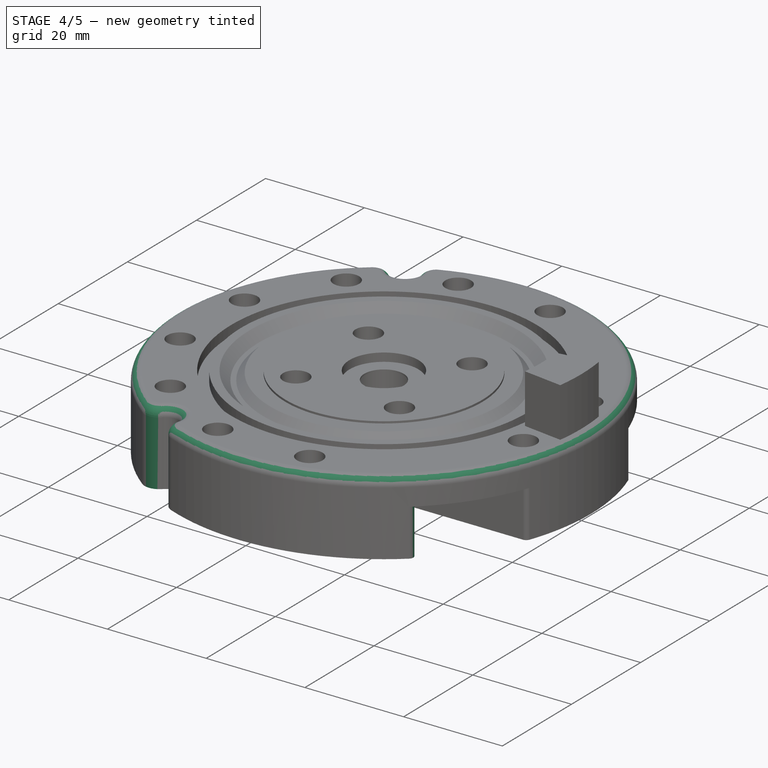
[diagram: stage 4 of 5 — iso view after this stage's code; geometry added in this stage tinted green]
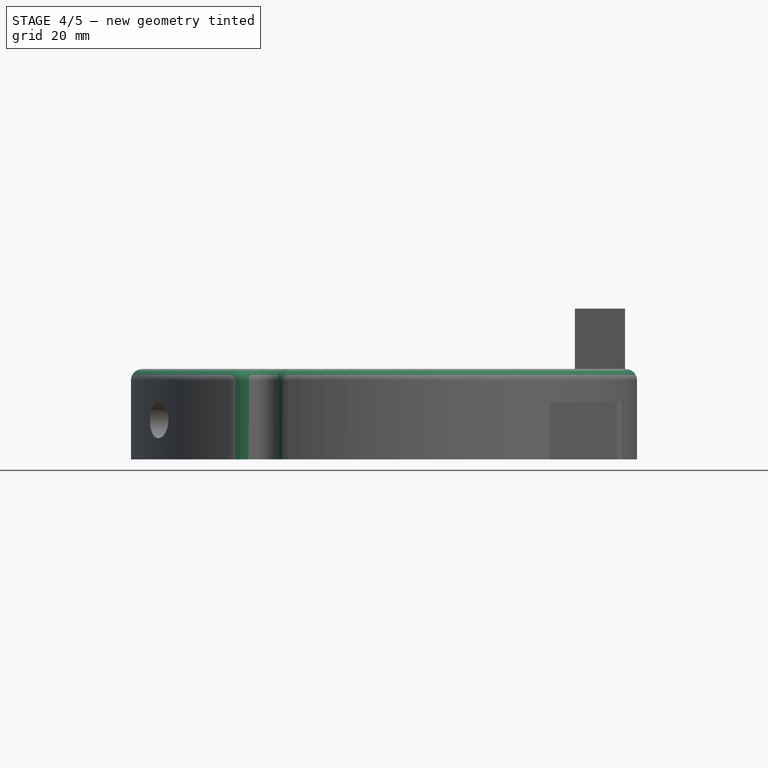
[diagram: stage 4 of 5 — front view after this stage's code; geometry added in this stage tinted green]
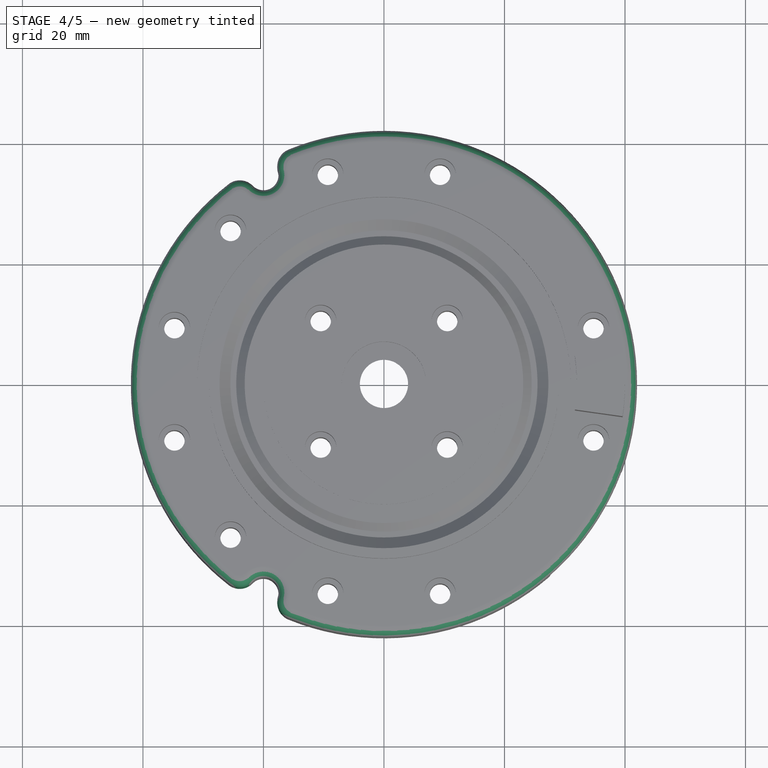
[diagram: stage 4 of 5 — top view after this stage's code; geometry added in this stage tinted green]
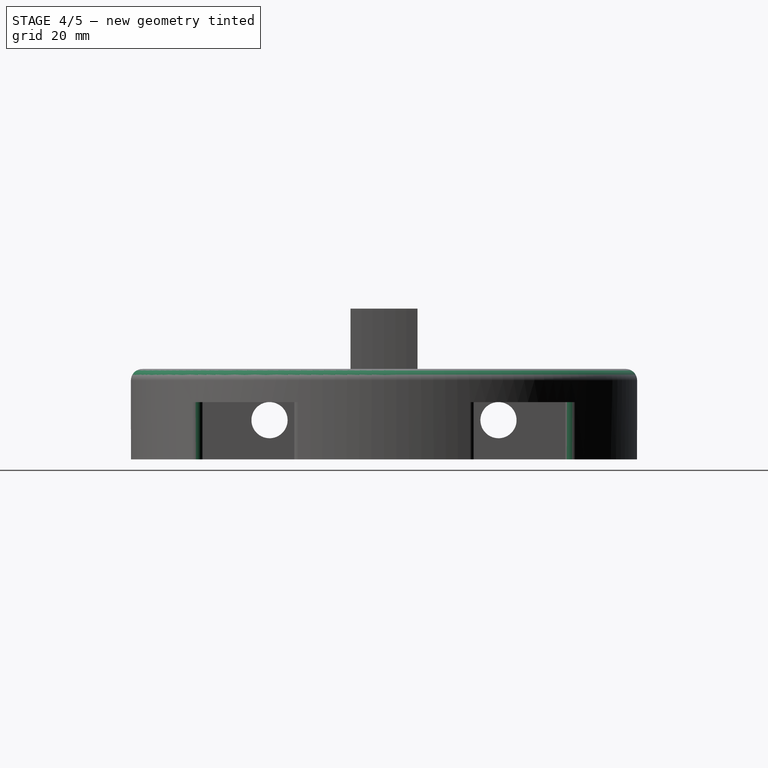
[diagram: stage 4 of 5 — right view after this stage's code; geometry added in this stage tinted green]
FEATURE [PartDesign::Fillet] Fillet002
  Base = -> Fillet001 [Edge57]
  Placement = pos=(0,0,0) rot=(1,0,0;3.14159rad)
  Radius = 3
FEATURE [PartDesign::Fillet] Fillet003
  Base = -> Fillet002 [Edge42]
  Placement = pos=(0,0,0) rot=(1,0,0;3.14159rad)
  Radius = 3
FEATURE [PartDesign::Fillet] Fillet004
  Base = -> Fillet003 [Edge44]
  Placement = pos=(0,0,0) rot=(1,0,0;3.14159rad)
  Radius = 1.9
FEATURE [PartDesign::Fillet] Fillet005
  Base = -> Fillet004 [Edge106]
  Placement = pos=(0,0,0) rot=(1,0,0;3.14159rad)
  Radius = 1
FEATURE [PartDesign::Fillet] Fillet006
  Base = -> Fillet005 [Edge44]
  Placement = pos=(0,0,0) rot=(1,0,0;3.14159rad)
  Radius = 1
FEATURE [PartDesign::Fillet] Fillet007
  Base = -> Fillet006 [Edge60]
  Placement = pos=(0,0,0) rot=(1,0,0;3.14159rad)
  Radius = 1
FEATURE [PartDesign::Fillet] Fillet008
  Base = -> Fillet007 [Edge55]
  Placement = pos=(0,0,0) rot=(1,0,0;3.14159rad)
  Radius = 1
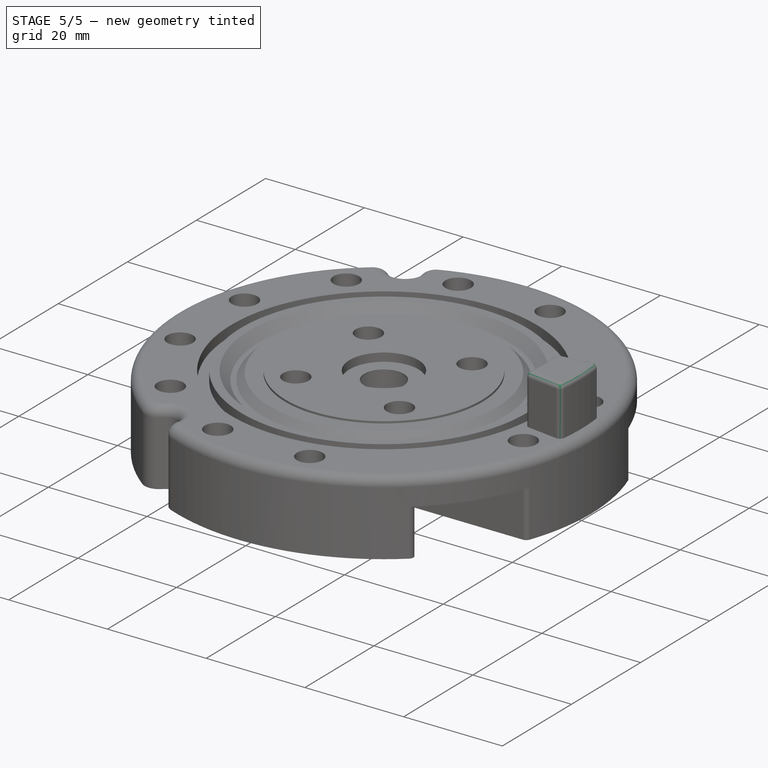
[diagram: stage 5 of 5 — iso view after this stage's code; geometry added in this stage tinted green]
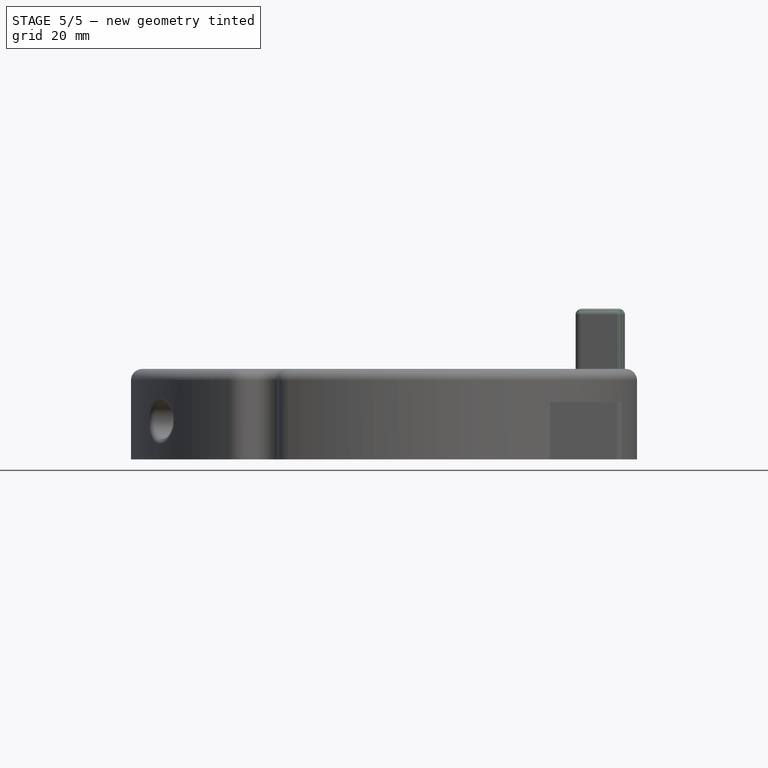
[diagram: stage 5 of 5 — front view after this stage's code; geometry added in this stage tinted green]
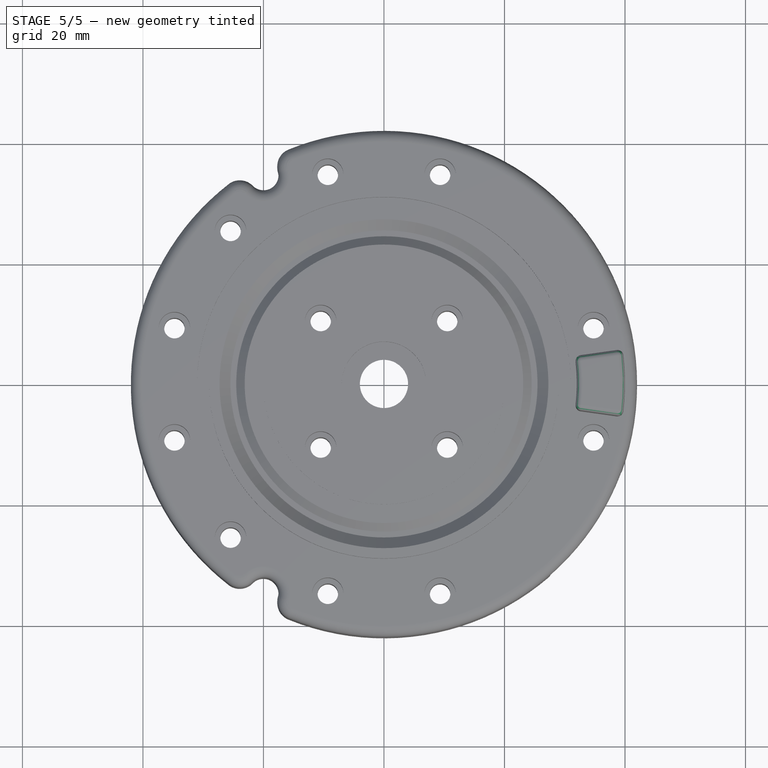
[diagram: stage 5 of 5 — top view after this stage's code; geometry added in this stage tinted green]
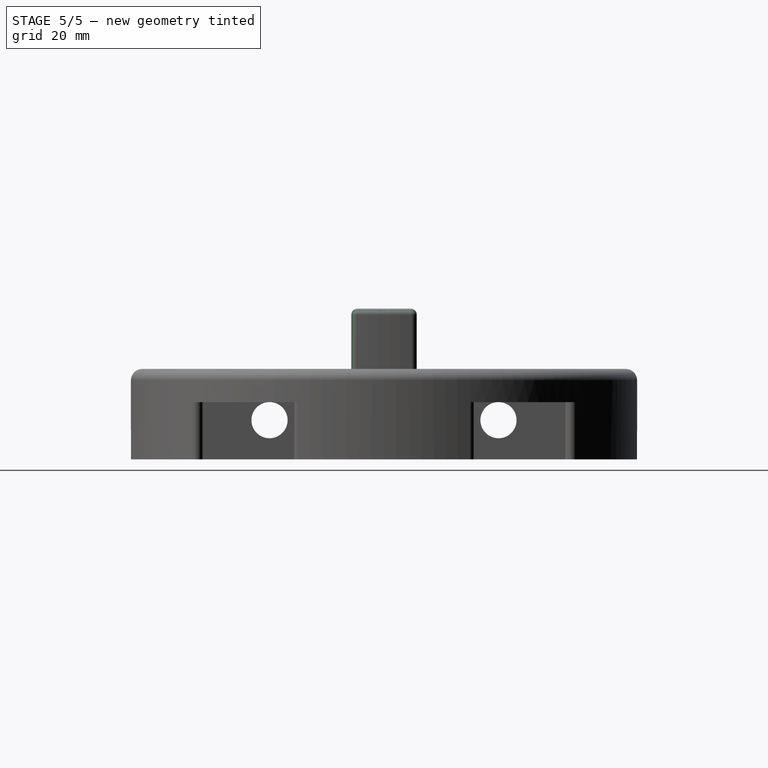
[diagram: stage 5 of 5 — right view after this stage's code; geometry added in this stage tinted green]
FEATURE [PartDesign::Fillet] Fillet009
  Base = -> Fillet008 [Edge93]
  Placement = pos=(0,0,0) rot=(1,0,0;3.14159rad)
  Radius = 1
FEATURE [PartDesign::Fillet] Fillet010
  Base = -> Fillet009 [Edge7]
  Placement = pos=(0,0,0) rot=(1,0,0;3.14159rad)
  Radius = 1
FEATURE [PartDesign::Fillet] Fillet011
  Base = -> Fillet010 [Edge180]
  Placement = pos=(0,0,0) rot=(1,0,0;3.14159rad)
  Radius = 1
FEATURE [PartDesign::Fillet] Fillet012
  Base = -> Fillet011 [Edge31]
  Placement = pos=(0,0,0) rot=(1,0,0;3.14159rad)
  Radius = 1
FEATURE [PartDesign::Fillet] Fillet013
  Base = -> Fillet012 [Edge38]
  Placement = pos=(0,0,0) rot=(1,0,0;3.14159rad)
  Radius = 1
FEATURE [PartDesign::Fillet] Fillet014
  Base = -> Fillet013 [Edge39]
  Placement = pos=(0,0,0) rot=(1,0,0;3.14159rad)
  Radius = 1
FEATURE [PartDesign::Fillet] Fillet015
  Base = -> Fillet014 [Edge35]
  Placement = pos=(0,0,0) rot=(1,0,0;3.14159rad)
  Radius = 1
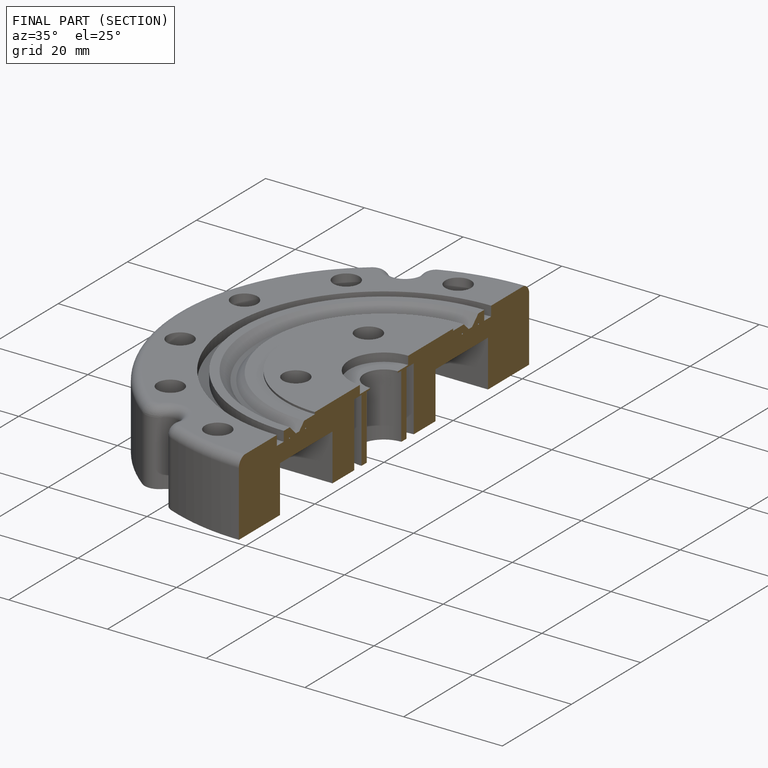
[diagram: finished part — half-section view (interior)]
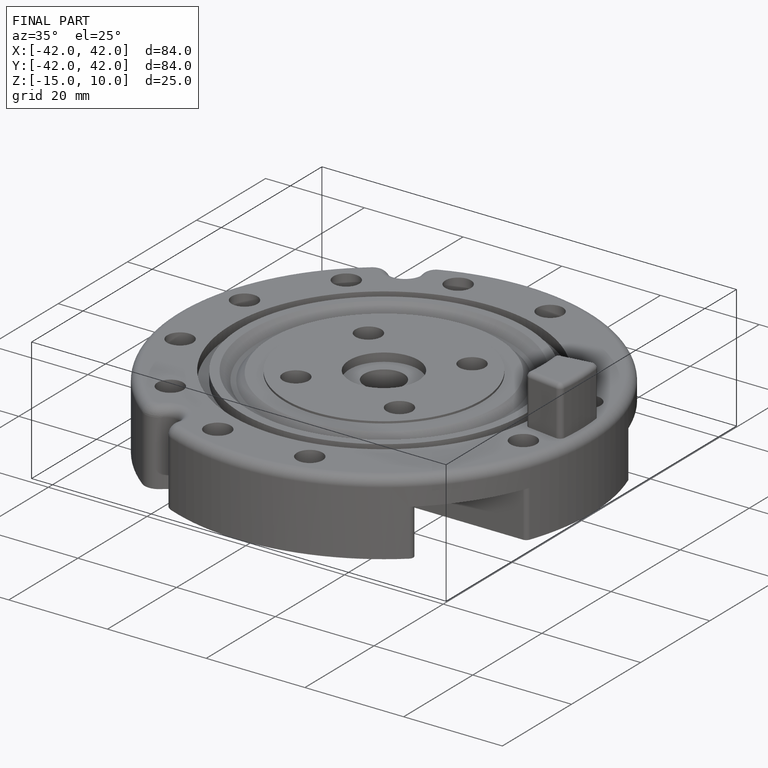
[diagram: finished part — iso view with bounding-box wireframe]
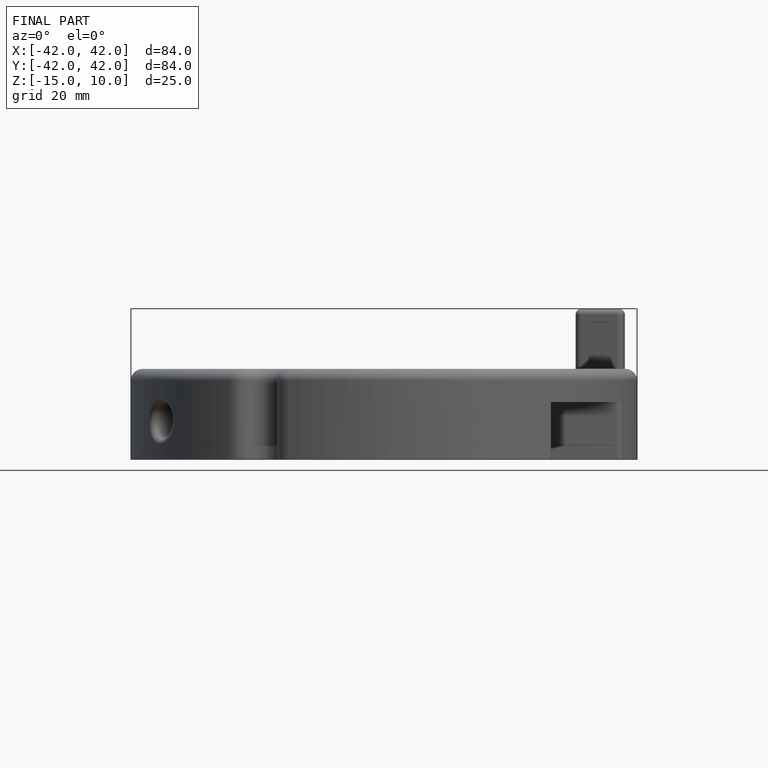
[diagram: finished part — front view with bounding-box wireframe]
